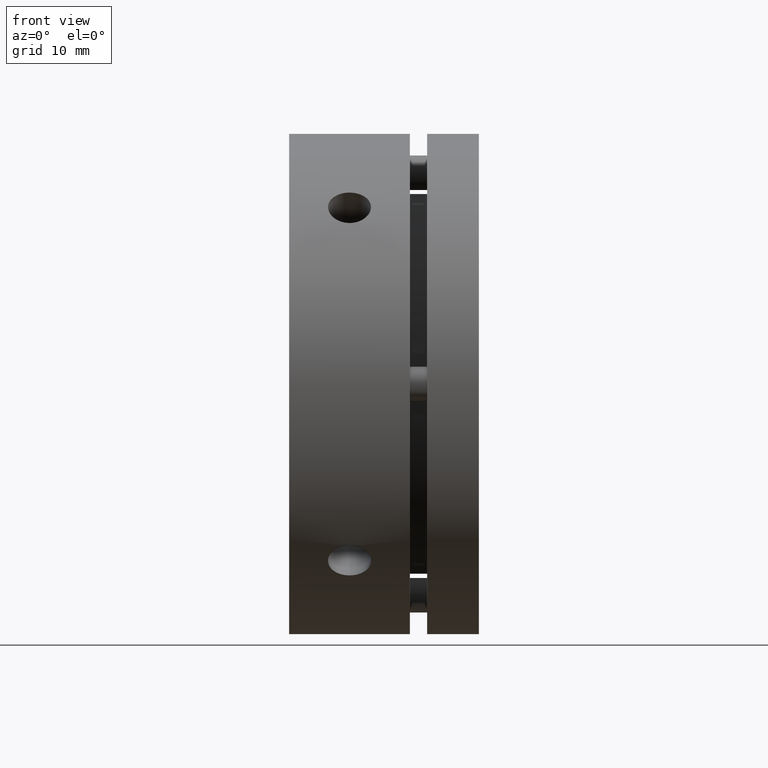
[diagram: clean part render]
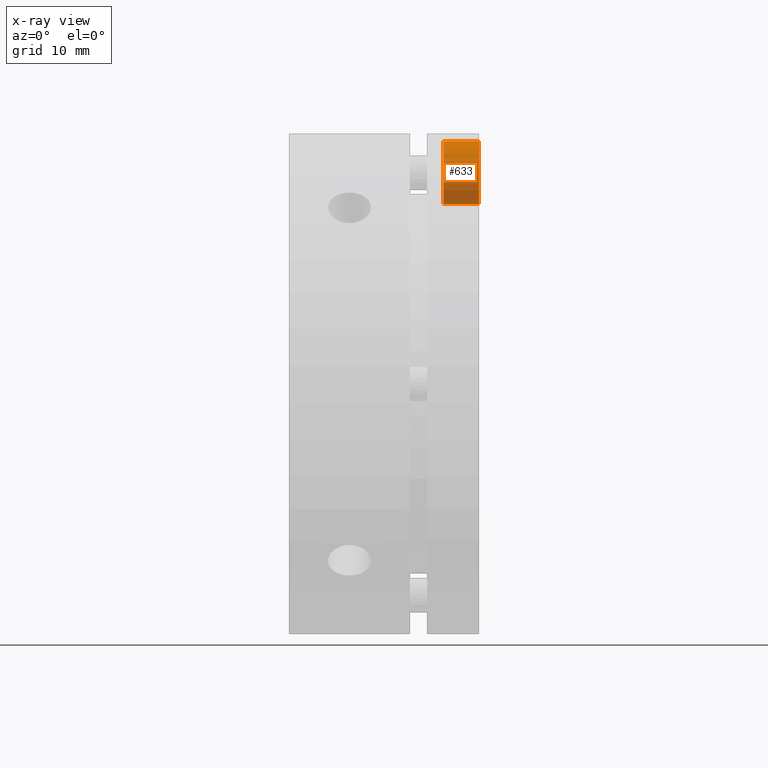
[diagram: x-ray — body ghosted, one internal face saturated and labeled with its STEP entity id]
A machine part, front view, then the same camera in x-ray: the body is ghosted and one INTERNAL B-rep face — a face not visible from any outside direction — is saturated and labeled: STEP entity #633.
In plain terms, the highlighted cylindrical surface (edge-blend (fillet) strip) has radius 3.65 mm, axis along (1, 0, 0).
Its self-contained STEP definition (entity closure, byte-faithful):
#32 = ORIENTED_EDGE ( 'NONE', *, *, #3497, .F. ) ;
#63 = ORIENTED_EDGE ( 'NONE', *, *, #3526, .F. ) ;
#81 = ORIENTED_EDGE ( 'NONE', *, *, #3525, .T. ) ;
#143 = ORIENTED_EDGE ( 'NONE', *, *, #3510, .F. ) ;
#448 = VERTEX_POINT ( 'NONE', #1707 ) ;
#449 = VERTEX_POINT ( 'NONE', #1706 ) ;
#451 = VERTEX_POINT ( 'NONE', #1699 ) ;
#454 = VERTEX_POINT ( 'NONE', #1710 ) ;
#523 = AXIS2_PLACEMENT_3D ( 'NONE', #2988, #2989, #2990 ) ;
#531 = AXIS2_PLACEMENT_3D ( 'NONE', #3020, #3021, #3022 ) ;
#633 = ADVANCED_FACE ( 'NONE', ( #1408 ), #1417, .F. ) ;
#775 = AXIS2_PLACEMENT_3D ( 'NONE', #1867, #1865, #1863 ) ;
#1111 = CIRCLE ( 'NONE', #523, 3.650000000000000400 ) ;
#1128 = CIRCLE ( 'NONE', #531, 3.650000000000000400 ) ;
#1152 = LINE ( 'NONE', #3054, #1157 ) ;
#1154 = LINE ( 'NONE', #3052, #1156 ) ;
#1156 = VECTOR ( 'NONE', #3047, 1000.000000000000000 ) ;
#1157 = VECTOR ( 'NONE', #3058, 1000.000000000000000 ) ;
#1408 = FACE_OUTER_BOUND ( 'NONE', #3333, .T. ) ;
#1417 = CYLINDRICAL_SURFACE ( 'NONE', #775, 3.650000000000000400 ) ;
#1699 = CARTESIAN_POINT ( 'NONE',  ( 17.89999999999999500, 0.0000000000000000000, 20.85000000000001200 ) ) ;
#1706 = CARTESIAN_POINT ( 'NONE',  ( 21.99999999999999300, 0.0000000000000000000, 20.85000000000001200 ) ) ;
#1707 = CARTESIAN_POINT ( 'NONE',  ( 21.99999999999999300, 4.469960816887838400E-016, 28.15000000000001300 ) ) ;
#1710 = CARTESIAN_POINT ( 'NONE',  ( 17.89999999999999500, 4.469960816887838400E-016, 28.15000000000001300 ) ) ;
#1863 = DIRECTION ( 'NONE',  ( 0.0000000000000000000, 0.0000000000000000000, -1.000000000000000000 ) ) ;
#1865 = DIRECTION ( 'NONE',  ( 1.000000000000000000, 0.0000000000000000000, 0.0000000000000000000 ) ) ;
#1867 = CARTESIAN_POINT ( 'NONE',  ( 19.94999999999999200, 0.0000000000000000000, 24.50000000000001100 ) ) ;
#2988 = CARTESIAN_POINT ( 'NONE',  ( 17.89999999999999500, 0.0000000000000000000, 24.50000000000001100 ) ) ;
#2989 = DIRECTION ( 'NONE',  ( 1.000000000000000000, 0.0000000000000000000, 0.0000000000000000000 ) ) ;
#2990 = DIRECTION ( 'NONE',  ( 0.0000000000000000000, 0.0000000000000000000, -1.000000000000000000 ) ) ;
#3020 = CARTESIAN_POINT ( 'NONE',  ( 21.99999999999999300, 0.0000000000000000000, 24.50000000000001100 ) ) ;
#3021 = DIRECTION ( 'NONE',  ( -1.000000000000000000, -0.0000000000000000000, -0.0000000000000000000 ) ) ;
#3022 = DIRECTION ( 'NONE',  ( 0.0000000000000000000, 0.0000000000000000000, -1.000000000000000000 ) ) ;
#3047 = DIRECTION ( 'NONE',  ( 1.000000000000000000, 0.0000000000000000000, 0.0000000000000000000 ) ) ;
#3052 = CARTESIAN_POINT ( 'NONE',  ( 19.94999999999999200, 4.469960816887839400E-016, 28.15000000000001300 ) ) ;
#3054 = CARTESIAN_POINT ( 'NONE',  ( 19.94999999999999200, 0.0000000000000000000, 20.85000000000001200 ) ) ;
#3058 = DIRECTION ( 'NONE',  ( 1.000000000000000000, 0.0000000000000000000, 0.0000000000000000000 ) ) ;
#3333 = EDGE_LOOP ( 'NONE', ( #32, #81, #143, #63 ) ) ;
#3497 = EDGE_CURVE ( 'NONE', #454, #451, #1111, .T. ) ;
#3510 = EDGE_CURVE ( 'NONE', #449, #448, #1128, .T. ) ;
#3525 = EDGE_CURVE ( 'NONE', #454, #448, #1154, .T. ) ;
#3526 = EDGE_CURVE ( 'NONE', #451, #449, #1152, .T. ) ;